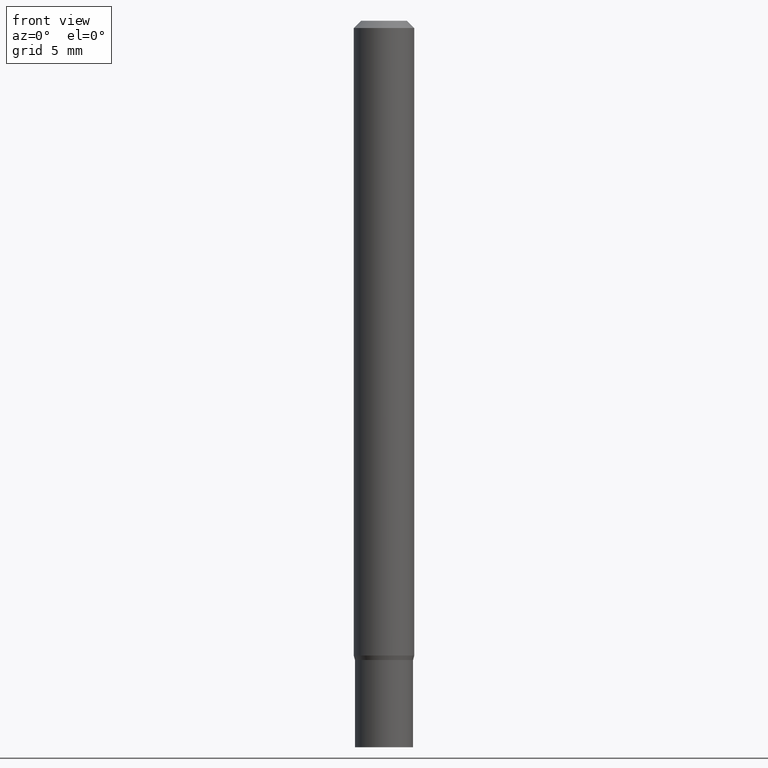
[diagram: clean part render]
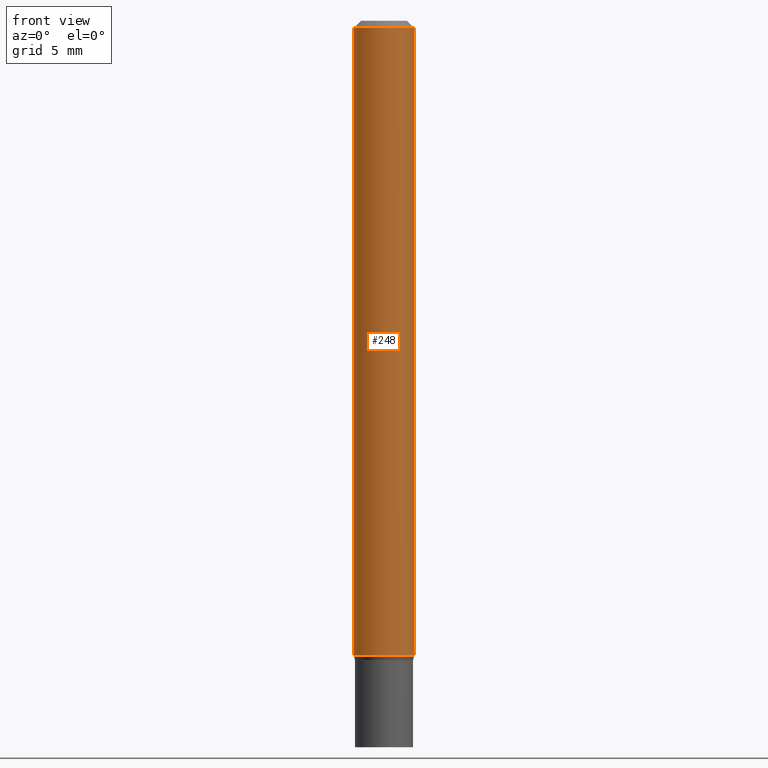
[diagram: same view with one face highlighted and labeled with its STEP entity id]
A machine part, front view. The second image highlights one B-rep face of the part: STEP entity #248.
In plain terms, the highlighted cylindrical surface (edge-blend (fillet) strip) has radius 1.5875 mm, axis along (-0, 0, 1).
Its self-contained STEP definition (entity closure, byte-faithful):
#5 = ORIENTED_EDGE ( 'NONE', *, *, #355, .F. ) ;
#35 = ORIENTED_EDGE ( 'NONE', *, *, #159, .T. ) ;
#39 = VECTOR ( 'NONE', #411, 39.37007874015748143 ) ;
#61 = CARTESIAN_POINT ( 'NONE',  ( 0.06250000000000000000, -5.012614570252739972E-15, -1.310669872981077733 ) ) ;
#68 = DIRECTION ( 'NONE',  ( 1.000000000000000000, -6.982962677686266711E-15, 0.000000000000000000 ) ) ;
#70 = ORIENTED_EDGE ( 'NONE', *, *, #407, .F. ) ;
#73 = EDGE_CURVE ( 'NONE', #337, #361, #214, .T. ) ;
#77 = DIRECTION ( 'NONE',  ( -2.445468806185136877E-29, 3.491481338843145188E-15, 1.000000000000000000 ) ) ;
#101 = CYLINDRICAL_SURFACE ( 'NONE', #208, 0.06250000000000000000 ) ;
#117 = VERTEX_POINT ( 'NONE', #344 ) ;
#129 = LINE ( 'NONE', #132, #39 ) ;
#132 = CARTESIAN_POINT ( 'NONE',  ( 0.06250000000000000000, -4.364351673553916694E-16, 3.047610484872459871E-30 ) ) ;
#133 = CIRCLE ( 'NONE', #223, 0.06250000000000000000 ) ;
#138 = LINE ( 'NONE', #424, #410 ) ;
#159 = EDGE_CURVE ( 'NONE', #361, #363, #129, .T. ) ;
#164 = DIRECTION ( 'NONE',  ( 1.000000000000000000, -6.982962677686262766E-15, 0.000000000000000000 ) ) ;
#172 = CARTESIAN_POINT ( 'NONE',  ( 0.06250000000000000000, -4.888073874380388472E-16, -0.01499999999999999944 ) ) ;
#177 = DIRECTION ( 'NONE',  ( 1.000000000000000000, -6.982962677686266711E-15, 4.876176775795935793E-29 ) ) ;
#205 = DIRECTION ( 'NONE',  ( -2.445468806185136597E-29, 3.491481338843145583E-15, 1.000000000000000000 ) ) ;
#208 = AXIS2_PLACEMENT_3D ( 'NONE', #211, #323, #177 ) ;
#211 = CARTESIAN_POINT ( 'NONE',  ( 0.000000000000000000, 0.000000000000000000, 0.000000000000000000 ) ) ;
#213 = EDGE_LOOP ( 'NONE', ( #70, #228, #35, #5 ) ) ;
#214 = CIRCLE ( 'NONE', #331, 0.06250000000000000000 ) ;
#216 = DIRECTION ( 'NONE',  ( -2.445468806185136597E-29, 3.491481338843145583E-15, 1.000000000000000000 ) ) ;
#223 = AXIS2_PLACEMENT_3D ( 'NONE', #252, #216, #68 ) ;
#228 = ORIENTED_EDGE ( 'NONE', *, *, #73, .T. ) ;
#231 = CARTESIAN_POINT ( 'NONE',  ( 3.205202289581861151E-29, -4.576179402897349091E-15, -1.310669872981077733 ) ) ;
#243 = FACE_OUTER_BOUND ( 'NONE', #213, .T. ) ;
#248 = ADVANCED_FACE ( 'NONE', ( #243 ), #101, .T. ) ;
#252 = CARTESIAN_POINT ( 'NONE',  ( 3.668203209277705088E-31, -5.237222008264718399E-17, -0.01499999999999999944 ) ) ;
#323 = DIRECTION ( 'NONE',  ( -2.445468806185136597E-29, 3.491481338843145583E-15, 1.000000000000000000 ) ) ;
#331 = AXIS2_PLACEMENT_3D ( 'NONE', #231, #205, #164 ) ;
#337 = VERTEX_POINT ( 'NONE', #429 ) ;
#344 = CARTESIAN_POINT ( 'NONE',  ( -0.06250000000000000000, -1.870186601639935272E-15, -0.01499999999999999944 ) ) ;
#355 = EDGE_CURVE ( 'NONE', #117, #363, #133, .T. ) ;
#361 = VERTEX_POINT ( 'NONE', #61 ) ;
#363 = VERTEX_POINT ( 'NONE', #172 ) ;
#407 = EDGE_CURVE ( 'NONE', #337, #117, #138, .T. ) ;
#410 = VECTOR ( 'NONE', #77, 39.37007874015748143 ) ;
#411 = DIRECTION ( 'NONE',  ( -2.445468806185136877E-29, 3.491481338843145188E-15, 1.000000000000000000 ) ) ;
#424 = CARTESIAN_POINT ( 'NONE',  ( -0.06250000000000000000, 4.440892098500626162E-16, -3.074334431409316114E-30 ) ) ;
#429 = CARTESIAN_POINT ( 'NONE',  ( -0.06250000000000000000, -4.132090193047286475E-15, -1.310669872981077733 ) ) ;